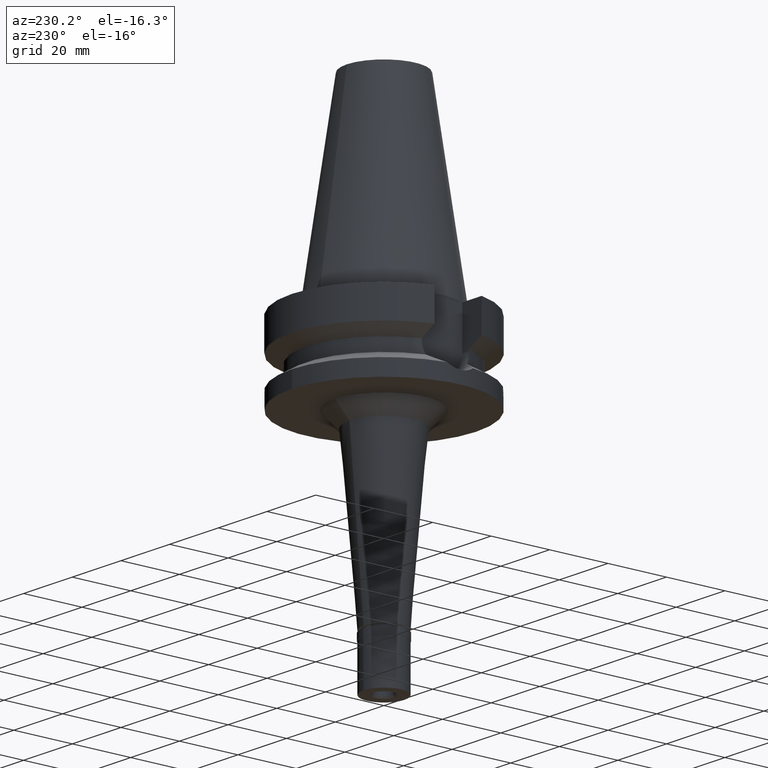
[diagram: clean part render]
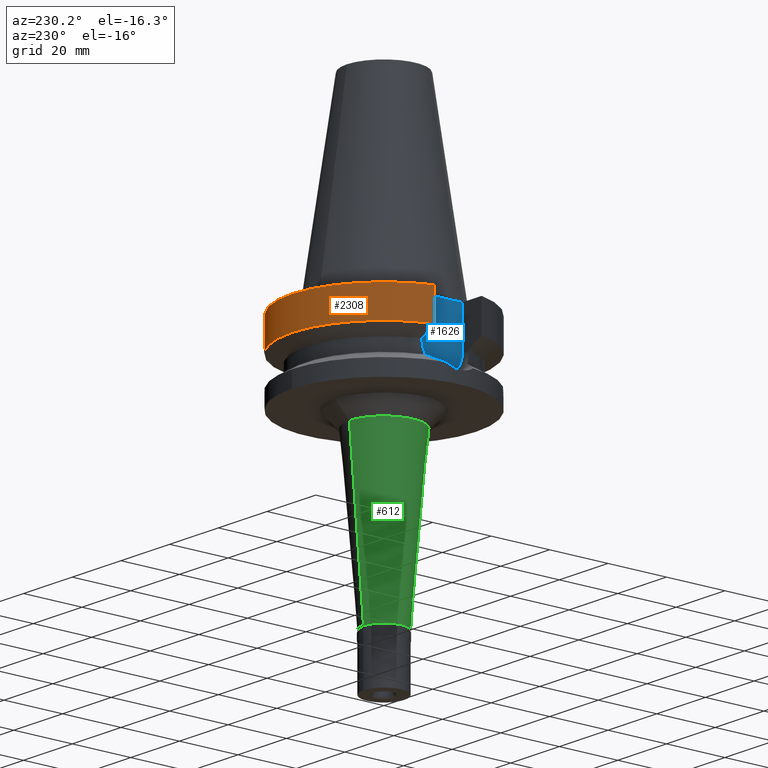
[diagram: same view with three faces highlighted in distinct colors, each labeled with its STEP entity id]
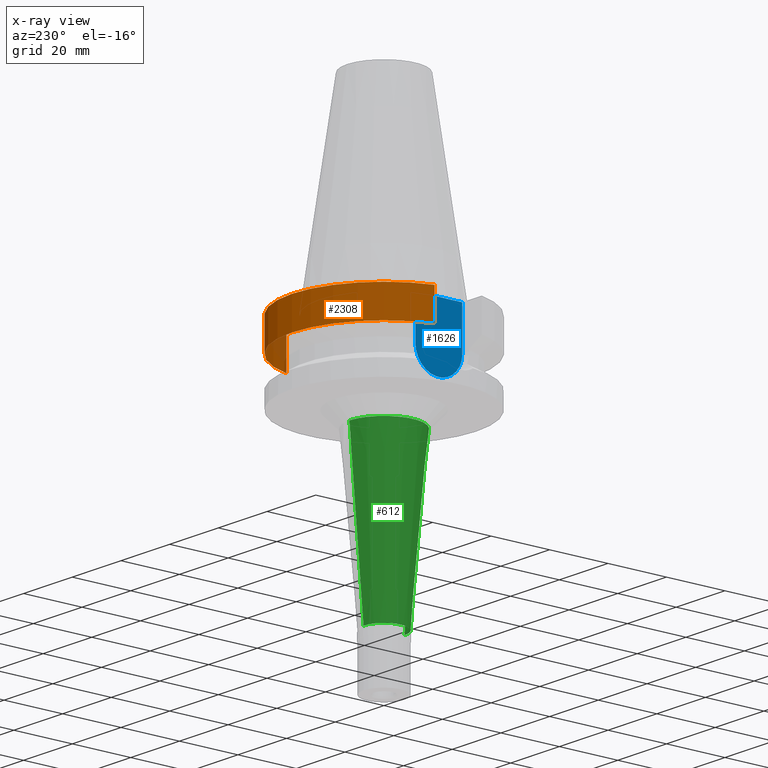
[diagram: x-ray of the same camera — body ghosted, the three highlighted faces saturated]
A machine part, auxiliary view with three faces highlighted in distinct colors.
The next image is the same camera in x-ray (body ghosted, the three faces saturated) — at least one of them is partly hidden behind the body in this view.
Their STEP definitions:

[orange] entity #2308 — the highlighted cylindrical surface (partial cylindrical patch) has radius 31.5 mm, axis along (0, 0, -1).
#7 = CARTESIAN_POINT ( 'NONE',  ( -30.45402272279000044, 8.050000000000000711, -1.000000000000000000 ) ) ;
#35 = DIRECTION ( 'NONE',  ( 0.0000000000000000000, 1.000000000000000000, 0.0000000000000000000 ) ) ;
#82 = CARTESIAN_POINT ( 'NONE',  ( 0.0000000000000000000, 1.065333950388000029E-14, -11.56550565266999975 ) ) ;
#256 = CARTESIAN_POINT ( 'NONE',  ( -30.45402272279000044, 8.050000000000000711, -1.000000000000000000 ) ) ;
#293 = CYLINDRICAL_SURFACE ( 'NONE', #1899, 31.50000000000000000 ) ;
#372 = DIRECTION ( 'NONE',  ( 0.0000000000000000000, 1.000000000000000000, 0.0000000000000000000 ) ) ;
#412 = CARTESIAN_POINT ( 'NONE',  ( 0.0000000000000000000, 2.127456419478999887E-14, -1.000000000000000000 ) ) ;
#625 = CIRCLE ( 'NONE', #1807, 31.50000000000000000 ) ;
#682 = DIRECTION ( 'NONE',  ( -1.807827924736990843E-08, 6.839232778882962381E-08, 0.9999999999999974465 ) ) ;
#716 = CIRCLE ( 'NONE', #2385, 31.50000000000000000 ) ;
#719 = LINE ( 'NONE', #256, #1774 ) ;
#723 = FACE_OUTER_BOUND ( 'NONE', #1299, .T. ) ;
#906 = CARTESIAN_POINT ( 'NONE',  ( 30.45402291378999848, 8.049999277400001318, -11.56551216098000090 ) ) ;
#910 = VERTEX_POINT ( 'NONE', #7 ) ;
#924 = VERTEX_POINT ( 'NONE', #906 ) ;
#925 = CARTESIAN_POINT ( 'NONE',  ( 30.45402291378999848, 8.049999277400001318, -11.56551216098000090 ) ) ;
#980 = CARTESIAN_POINT ( 'NONE',  ( 30.45402272279000044, 8.050000000000000711, -1.000000000000000000 ) ) ;
#1009 = DIRECTION ( 'NONE',  ( 1.036836614936019699E-07, 3.922459969640068367E-07, -0.9999999999999177325 ) ) ;
#1176 = DIRECTION ( 'NONE',  ( 0.0000000000000000000, 0.0000000000000000000, -1.000000000000000000 ) ) ;
#1205 = DIRECTION ( 'NONE',  ( 0.0000000000000000000, -1.000000000000000000, 0.0000000000000000000 ) ) ;
#1229 = EDGE_CURVE ( 'NONE', #910, #1567, #719, .T. ) ;
#1299 = EDGE_LOOP ( 'NONE', ( #1998, #2388, #1775, #1848 ) ) ;
#1462 = DIRECTION ( 'NONE',  ( 0.0000000000000000000, 0.0000000000000000000, 1.000000000000000000 ) ) ;
#1546 = DIRECTION ( 'NONE',  ( 0.0000000000000000000, 0.0000000000000000000, -1.000000000000000000 ) ) ;
#1567 = VERTEX_POINT ( 'NONE', #2520 ) ;
#1774 = VECTOR ( 'NONE', #1009, 1000.000000000000114 ) ;
#1775 = ORIENTED_EDGE ( 'NONE', *, *, #2654, .F. ) ;
#1792 = EDGE_CURVE ( 'NONE', #924, #1567, #716, .T. ) ;
#1807 = AXIS2_PLACEMENT_3D ( 'NONE', #412, #1546, #372 ) ;
#1848 = ORIENTED_EDGE ( 'NONE', *, *, #1792, .T. ) ;
#1887 = EDGE_CURVE ( 'NONE', #910, #2241, #625, .T. ) ;
#1899 = AXIS2_PLACEMENT_3D ( 'NONE', #1905, #1176, #1205 ) ;
#1902 = VECTOR ( 'NONE', #682, 1000.000000000000114 ) ;
#1905 = CARTESIAN_POINT ( 'NONE',  ( 0.0000000000000000000, 2.127456419478999887E-14, 73.71999999999999886 ) ) ;
#1998 = ORIENTED_EDGE ( 'NONE', *, *, #1229, .F. ) ;
#2000 = LINE ( 'NONE', #925, #1902 ) ;
#2241 = VERTEX_POINT ( 'NONE', #980 ) ;
#2308 = ADVANCED_FACE ( 'NONE', ( #723 ), #293, .T. ) ;
#2385 = AXIS2_PLACEMENT_3D ( 'NONE', #82, #1462, #35 ) ;
#2388 = ORIENTED_EDGE ( 'NONE', *, *, #1887, .T. ) ;
#2520 = CARTESIAN_POINT ( 'NONE',  ( -30.45402162731999951, 8.050004144262000949, -11.56546832291999927 ) ) ;
#2654 = EDGE_CURVE ( 'NONE', #924, #2241, #2000, .T. ) ;

[blue] entity #1626 — the highlighted planar face has unit normal (-1, 0, 0).
#169 = DIRECTION ( 'NONE',  ( 1.000000000000000000, 0.0000000000000000000, 0.0000000000000000000 ) ) ;
#181 = EDGE_CURVE ( 'NONE', #2087, #1084, #1249, .T. ) ;
#241 = AXIS2_PLACEMENT_3D ( 'NONE', #1113, #2953, #1362 ) ;
#500 = CARTESIAN_POINT ( 'NONE',  ( -22.50000000000000000, -8.050000000000000711, -1.000000000000000000 ) ) ;
#531 = CARTESIAN_POINT ( 'NONE',  ( -22.50000000000000000, 8.050000000000000711, -14.94999999999999929 ) ) ;
#540 = EDGE_CURVE ( 'NONE', #2632, #2224, #1952, .T. ) ;
#577 = VECTOR ( 'NONE', #2763, 1000.000000000000000 ) ;
#637 = CARTESIAN_POINT ( 'NONE',  ( -22.50000000000000000, -8.050000000000000711, -14.94999999999999929 ) ) ;
#667 = ORIENTED_EDGE ( 'NONE', *, *, #540, .F. ) ;
#697 = CARTESIAN_POINT ( 'NONE',  ( -22.50000000000000000, -8.050000000000000711, -1.000000000000000000 ) ) ;
#711 = FACE_OUTER_BOUND ( 'NONE', #1470, .T. ) ;
#998 = LINE ( 'NONE', #500, #2533 ) ;
#1027 = CARTESIAN_POINT ( 'NONE',  ( -22.50000000000000000, -8.050000000000000711, -1.000000000000000000 ) ) ;
#1084 = VERTEX_POINT ( 'NONE', #1261 ) ;
#1095 = ORIENTED_EDGE ( 'NONE', *, *, #2376, .F. ) ;
#1113 = CARTESIAN_POINT ( 'NONE',  ( -22.50000000000000000, 2.173748068486999793E-14, 0.0000000000000000000 ) ) ;
#1249 = LINE ( 'NONE', #1027, #2781 ) ;
#1261 = CARTESIAN_POINT ( 'NONE',  ( -22.50000000000000000, 8.050000000000000711, -1.000000000000000000 ) ) ;
#1362 = DIRECTION ( 'NONE',  ( 0.0000000000000000000, 0.0000000000000000000, 1.000000000000000000 ) ) ;
#1470 = EDGE_LOOP ( 'NONE', ( #2938, #667, #1095, #1533 ) ) ;
#1533 = ORIENTED_EDGE ( 'NONE', *, *, #181, .T. ) ;
#1585 = AXIS2_PLACEMENT_3D ( 'NONE', #2226, #169, #2244 ) ;
#1626 = ADVANCED_FACE ( 'NONE', ( #711 ), #2494, .T. ) ;
#1822 = LINE ( 'NONE', #2517, #577 ) ;
#1952 = CIRCLE ( 'NONE', #1585, 8.050000000000000711 ) ;
#2064 = EDGE_CURVE ( 'NONE', #2224, #1084, #1822, .T. ) ;
#2087 = VERTEX_POINT ( 'NONE', #697 ) ;
#2224 = VERTEX_POINT ( 'NONE', #531 ) ;
#2226 = CARTESIAN_POINT ( 'NONE',  ( -22.50000000000000000, 1.807578675540999863E-14, -14.94999999999999929 ) ) ;
#2244 = DIRECTION ( 'NONE',  ( 0.0000000000000000000, 0.0000000000000000000, -1.000000000000000000 ) ) ;
#2376 = EDGE_CURVE ( 'NONE', #2087, #2632, #998, .T. ) ;
#2494 = PLANE ( 'NONE',  #241 ) ;
#2517 = CARTESIAN_POINT ( 'NONE',  ( -22.50000000000000000, 8.050000000000000711, -14.94999999999999929 ) ) ;
#2533 = VECTOR ( 'NONE', #2596, 1000.000000000000000 ) ;
#2596 = DIRECTION ( 'NONE',  ( 0.0000000000000000000, 0.0000000000000000000, -1.000000000000000000 ) ) ;
#2632 = VERTEX_POINT ( 'NONE', #637 ) ;
#2763 = DIRECTION ( 'NONE',  ( 0.0000000000000000000, 0.0000000000000000000, 1.000000000000000000 ) ) ;
#2781 = VECTOR ( 'NONE', #2864, 1000.000000000000000 ) ;
#2864 = DIRECTION ( 'NONE',  ( 0.0000000000000000000, 1.000000000000000000, 0.0000000000000000000 ) ) ;
#2938 = ORIENTED_EDGE ( 'NONE', *, *, #2064, .F. ) ;
#2953 = DIRECTION ( 'NONE',  ( -1.000000000000000000, 0.0000000000000000000, 0.0000000000000000000 ) ) ;

[green] entity #612 — the highlighted conical surface has half-angle 5 deg.
#79 = AXIS2_PLACEMENT_3D ( 'NONE', #2867, #2178, #2444 ) ;
#93 = CARTESIAN_POINT ( 'NONE',  ( 0.0000000000000000000, 11.83812309298000010, -32.00000000000000000 ) ) ;
#166 = FACE_OUTER_BOUND ( 'NONE', #1213, .T. ) ;
#228 = CIRCLE ( 'NONE', #79, 11.83812309298000010 ) ;
#318 = LINE ( 'NONE', #93, #893 ) ;
#400 = VERTEX_POINT ( 'NONE', #2751 ) ;
#608 = CARTESIAN_POINT ( 'NONE',  ( 0.0000000000000000000, -11.83812309298000010, -32.00000000000000000 ) ) ;
#612 = ADVANCED_FACE ( 'NONE', ( #166 ), #636, .T. ) ;
#636 = CONICAL_SURFACE ( 'NONE', #1266, 9.419061546492001114, 0.08726646259969973729 ) ;
#827 = LINE ( 'NONE', #608, #2393 ) ;
#871 = ORIENTED_EDGE ( 'NONE', *, *, #1556, .T. ) ;
#893 = VECTOR ( 'NONE', #1501, 1000.000000000000114 ) ;
#1050 = ORIENTED_EDGE ( 'NONE', *, *, #1863, .T. ) ;
#1096 = VERTEX_POINT ( 'NONE', #2673 ) ;
#1098 = EDGE_CURVE ( 'NONE', #400, #2477, #827, .T. ) ;
#1156 = CARTESIAN_POINT ( 'NONE',  ( 0.0000000000000000000, 0.0000000000000000000, -87.29999999999999716 ) ) ;
#1167 = DIRECTION ( 'NONE',  ( 0.0000000000000000000, 0.0000000000000000000, 1.000000000000000000 ) ) ;
#1213 = EDGE_LOOP ( 'NONE', ( #871, #2475, #1050, #1771 ) ) ;
#1266 = AXIS2_PLACEMENT_3D ( 'NONE', #1566, #1336, #2923 ) ;
#1336 = DIRECTION ( 'NONE',  ( 0.0000000000000000000, 0.0000000000000000000, 1.000000000000000000 ) ) ;
#1448 = VERTEX_POINT ( 'NONE', #2451 ) ;
#1501 = DIRECTION ( 'NONE',  ( 0.0000000000000000000, -0.08715574274763414342, -0.9961946980917475436 ) ) ;
#1556 = EDGE_CURVE ( 'NONE', #1096, #2477, #2833, .T. ) ;
#1566 = CARTESIAN_POINT ( 'NONE',  ( 0.0000000000000000000, 0.0000000000000000000, -59.64999999999999858 ) ) ;
#1675 = AXIS2_PLACEMENT_3D ( 'NONE', #1156, #1167, #2782 ) ;
#1761 = CARTESIAN_POINT ( 'NONE',  ( 0.0000000000000000000, -7.000000000000000000, -87.29999999999999716 ) ) ;
#1771 = ORIENTED_EDGE ( 'NONE', *, *, #2944, .T. ) ;
#1863 = EDGE_CURVE ( 'NONE', #400, #1448, #228, .T. ) ;
#2178 = DIRECTION ( 'NONE',  ( 0.0000000000000000000, 0.0000000000000000000, -1.000000000000000000 ) ) ;
#2393 = VECTOR ( 'NONE', #2408, 1000.000000000000114 ) ;
#2408 = DIRECTION ( 'NONE',  ( 0.0000000000000000000, 0.08715574274763414342, -0.9961946980917475436 ) ) ;
#2444 = DIRECTION ( 'NONE',  ( 0.0000000000000000000, -1.000000000000000000, 0.0000000000000000000 ) ) ;
#2451 = CARTESIAN_POINT ( 'NONE',  ( 0.0000000000000000000, 11.83812309298000010, -32.00000000000000000 ) ) ;
#2475 = ORIENTED_EDGE ( 'NONE', *, *, #1098, .F. ) ;
#2477 = VERTEX_POINT ( 'NONE', #1761 ) ;
#2673 = CARTESIAN_POINT ( 'NONE',  ( 0.0000000000000000000, 7.000000000000000000, -87.29999999999999716 ) ) ;
#2751 = CARTESIAN_POINT ( 'NONE',  ( 0.0000000000000000000, -11.83812309298000010, -32.00000000000000000 ) ) ;
#2782 = DIRECTION ( 'NONE',  ( 0.0000000000000000000, 1.000000000000000000, 0.0000000000000000000 ) ) ;
#2833 = CIRCLE ( 'NONE', #1675, 7.000000000000000000 ) ;
#2867 = CARTESIAN_POINT ( 'NONE',  ( 0.0000000000000000000, 0.0000000000000000000, -32.00000000000000000 ) ) ;
#2923 = DIRECTION ( 'NONE',  ( 0.0000000000000000000, 1.000000000000000000, 0.0000000000000000000 ) ) ;
#2944 = EDGE_CURVE ( 'NONE', #1448, #1096, #318, .T. ) ;